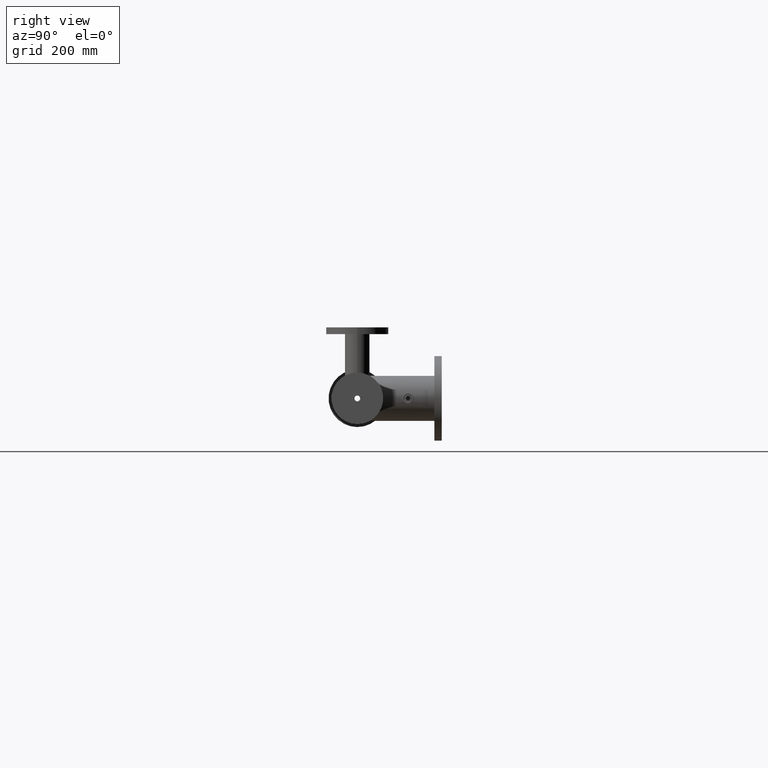
[diagram: clean part render]
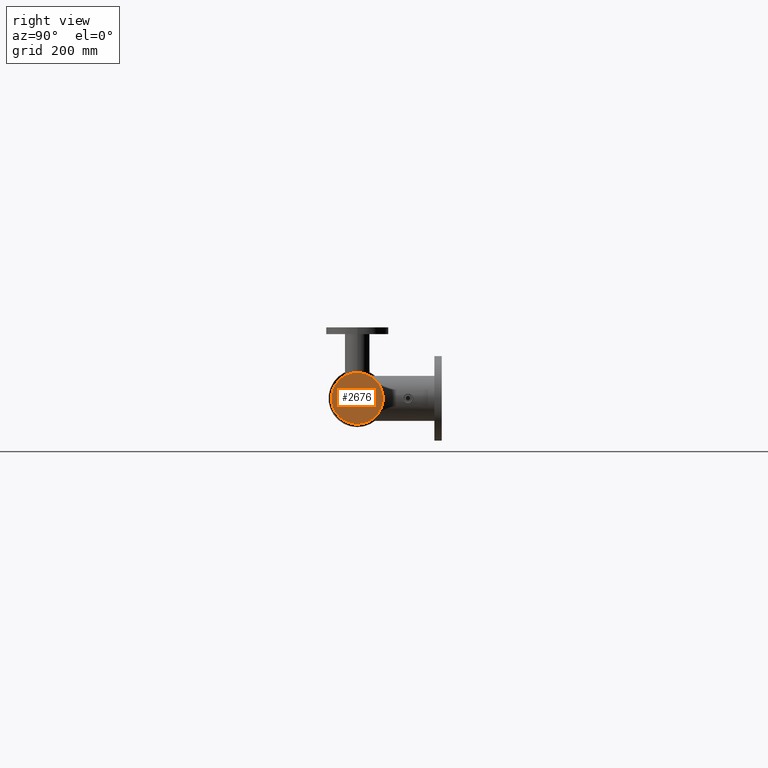
[diagram: same view with one face highlighted and labeled with its STEP entity id]
A machine part, right view. The second image highlights one B-rep face of the part: STEP entity #2676.
In plain terms, the highlighted planar face has unit normal (1, 0, 0).
Its self-contained STEP definition (entity closure, byte-faithful):
#101 = VERTEX_POINT ( 'NONE', #1790 ) ;
#349 = AXIS2_PLACEMENT_3D ( 'NONE', #7735, #3931, #9585 ) ;
#773 = DIRECTION ( 'NONE',  ( 0.000000000000000000, 0.000000000000000000, -1.000000000000000000 ) ) ;
#1233 = DIRECTION ( 'NONE',  ( 0.000000000000000000, 0.000000000000000000, -1.000000000000000000 ) ) ;
#1259 = DIRECTION ( 'NONE',  ( 1.000000000000000000, 0.000000000000000000, 3.061616997868382648E-16 ) ) ;
#1332 = AXIS2_PLACEMENT_3D ( 'NONE', #6522, #1259, #3615 ) ;
#1442 = CIRCLE ( 'NONE', #4799, 8.500000000000000000 ) ;
#1625 = EDGE_CURVE ( 'NONE', #5690, #2755, #1442, .T. ) ;
#1628 = PLANE ( 'NONE',  #349 ) ;
#1700 = CARTESIAN_POINT ( 'NONE',  ( 1022.500000000000000, 1.040949779275250140E-15, -8.499999999999689138 ) ) ;
#1790 = CARTESIAN_POINT ( 'NONE',  ( 1022.500000000000000, 0.000000000000000000, 76.50000000000042633 ) ) ;
#2195 = EDGE_CURVE ( 'NONE', #101, #4120, #6415, .T. ) ;
#2380 = FACE_BOUND ( 'NONE', #3558, .T. ) ;
#2676 = ADVANCED_FACE ( 'NONE', ( #6942, #2380 ), #1628, .T. ) ;
#2755 = VERTEX_POINT ( 'NONE', #8742 ) ;
#3558 = EDGE_LOOP ( 'NONE', ( #8031, #9801 ) ) ;
#3567 = ORIENTED_EDGE ( 'NONE', *, *, #2195, .T. ) ;
#3578 = CIRCLE ( 'NONE', #1332, 76.50000000000011369 ) ;
#3615 = DIRECTION ( 'NONE',  ( 0.000000000000000000, 0.000000000000000000, -1.000000000000000000 ) ) ;
#3931 = DIRECTION ( 'NONE',  ( 1.000000000000000000, 0.000000000000000000, 3.061616997868382648E-16 ) ) ;
#4120 = VERTEX_POINT ( 'NONE', #6124 ) ;
#4622 = DIRECTION ( 'NONE',  ( 1.000000000000000000, 0.000000000000000000, 3.061616997868382648E-16 ) ) ;
#4799 = AXIS2_PLACEMENT_3D ( 'NONE', #5176, #5925, #1233 ) ;
#4818 = AXIS2_PLACEMENT_3D ( 'NONE', #7624, #4622, #773 ) ;
#5176 = CARTESIAN_POINT ( 'NONE',  ( 1022.500000000000000, 0.000000000000000000, 3.130503380320421327E-13 ) ) ;
#5690 = VERTEX_POINT ( 'NONE', #1700 ) ;
#5925 = DIRECTION ( 'NONE',  ( 1.000000000000000000, 0.000000000000000000, 3.061616997868382648E-16 ) ) ;
#6124 = CARTESIAN_POINT ( 'NONE',  ( 1022.500000000000000, 9.368548013477265655E-15, -76.49999999999978684 ) ) ;
#6382 = CARTESIAN_POINT ( 'NONE',  ( 1022.500000000000000, 0.000000000000000000, 3.130503380320421327E-13 ) ) ;
#6415 = CIRCLE ( 'NONE', #4818, 76.50000000000011369 ) ;
#6522 = CARTESIAN_POINT ( 'NONE',  ( 1022.500000000000000, 0.000000000000000000, 3.130503380320421327E-13 ) ) ;
#6942 = FACE_OUTER_BOUND ( 'NONE', #8202, .T. ) ;
#7409 = EDGE_CURVE ( 'NONE', #2755, #5690, #8997, .T. ) ;
#7624 = CARTESIAN_POINT ( 'NONE',  ( 1022.500000000000000, 0.000000000000000000, 3.130503380320421327E-13 ) ) ;
#7735 = CARTESIAN_POINT ( 'NONE',  ( 1022.500000000000000, 0.000000000000000000, 3.130503380320421327E-13 ) ) ;
#7892 = EDGE_CURVE ( 'NONE', #4120, #101, #3578, .T. ) ;
#8031 = ORIENTED_EDGE ( 'NONE', *, *, #7409, .F. ) ;
#8037 = DIRECTION ( 'NONE',  ( 0.000000000000000000, 0.000000000000000000, -1.000000000000000000 ) ) ;
#8059 = AXIS2_PLACEMENT_3D ( 'NONE', #6382, #9489, #8037 ) ;
#8202 = EDGE_LOOP ( 'NONE', ( #3567, #8711 ) ) ;
#8711 = ORIENTED_EDGE ( 'NONE', *, *, #7892, .T. ) ;
#8742 = CARTESIAN_POINT ( 'NONE',  ( 1022.500000000000000, 0.000000000000000000, 8.500000000000312639 ) ) ;
#8997 = CIRCLE ( 'NONE', #8059, 8.500000000000000000 ) ;
#9489 = DIRECTION ( 'NONE',  ( 1.000000000000000000, 0.000000000000000000, 3.061616997868382648E-16 ) ) ;
#9585 = DIRECTION ( 'NONE',  ( 3.061616997868382648E-16, 0.000000000000000000, -1.000000000000000000 ) ) ;
#9801 = ORIENTED_EDGE ( 'NONE', *, *, #1625, .F. ) ;